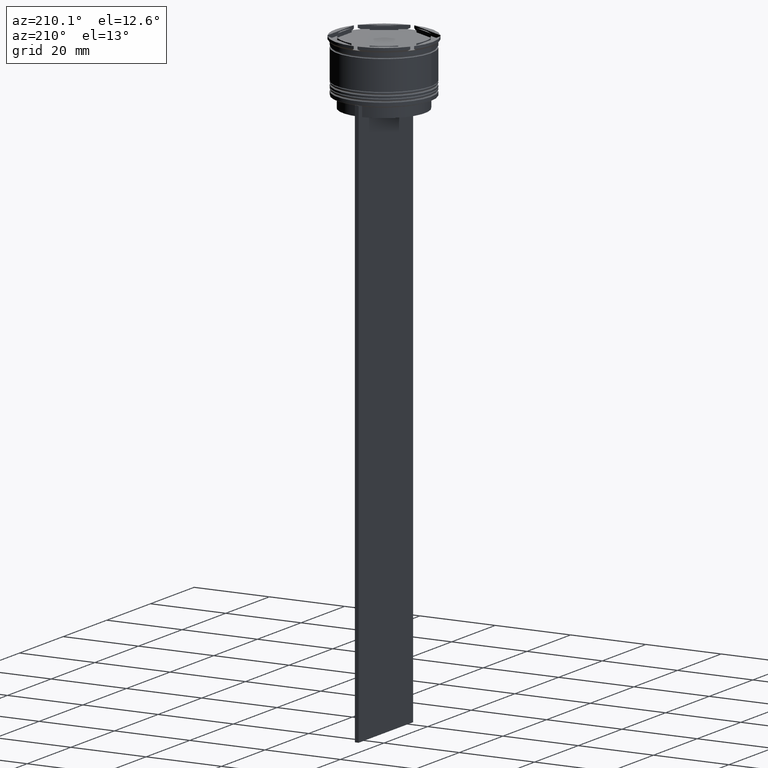
[diagram: clean part render]
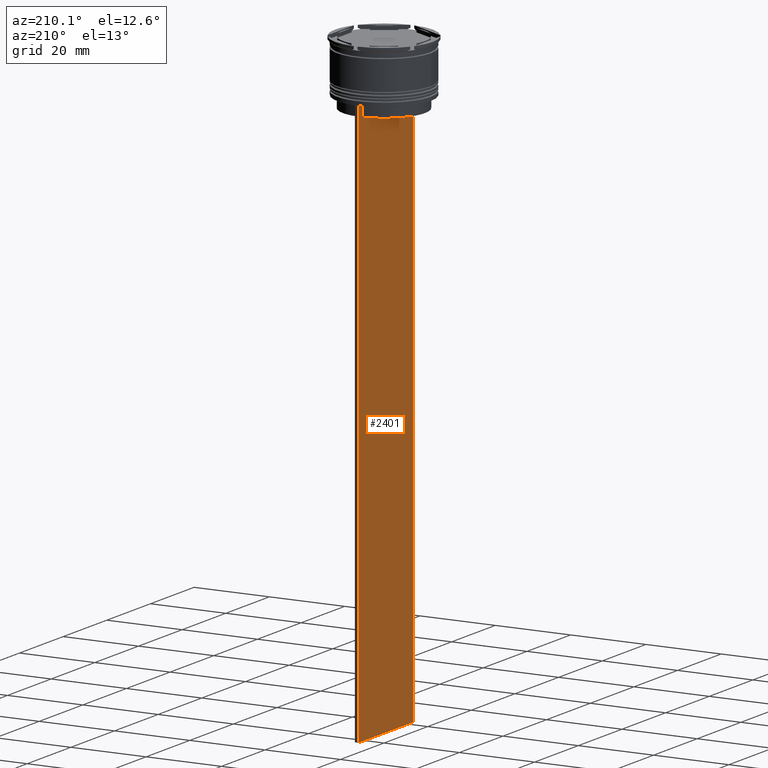
[diagram: same view with one face highlighted and labeled with its STEP entity id]
A machine part, auxiliary view. The second image highlights one B-rep face of the part: STEP entity #2401.
In plain terms, the highlighted planar face has unit normal (-1, 0, 0).
Its self-contained STEP definition (entity closure, byte-faithful):
#23 = CARTESIAN_POINT ( 'NONE',  ( -0.5000000000000000000, -10.88852607105296322, -14.50000000000000000 ) ) ;
#24 = CARTESIAN_POINT ( 'NONE',  ( -0.5000000000000000000, 12.50000000000000711, 11.01999200639360765 ) ) ;
#32 = CARTESIAN_POINT ( 'NONE',  ( -0.5000000000000000000, -11.38902980942626719, -14.00000000000000178 ) ) ;
#83 = DIRECTION ( 'NONE',  ( -1.000000000000000000, 0.000000000000000000, 0.000000000000000000 ) ) ;
#93 = EDGE_CURVE ( 'NONE', #1839, #467, #884, .T. ) ;
#104 = LINE ( 'NONE', #992, #2749 ) ;
#108 = ORIENTED_EDGE ( 'NONE', *, *, #2715, .F. ) ;
#189 = AXIS2_PLACEMENT_3D ( 'NONE', #2098, #83, #317 ) ;
#199 = LINE ( 'NONE', #24, #691 ) ;
#237 = DIRECTION ( 'NONE',  ( 0.000000000000000000, -1.000000000000000000, 0.000000000000000000 ) ) ;
#256 = CARTESIAN_POINT ( 'NONE',  ( -0.5000000000000000000, 12.50000000000000711, -163.9999999999999716 ) ) ;
#270 = LINE ( 'NONE', #716, #1395 ) ;
#271 = ORIENTED_EDGE ( 'NONE', *, *, #405, .F. ) ;
#300 = CARTESIAN_POINT ( 'NONE',  ( -0.5000000000000000000, -12.49999999999999289, -14.00000000000000178 ) ) ;
#304 = PLANE ( 'NONE',  #189 ) ;
#317 = DIRECTION ( 'NONE',  ( 0.000000000000000000, 0.000000000000000000, 1.000000000000000000 ) ) ;
#331 = VERTEX_POINT ( 'NONE', #2368 ) ;
#336 = EDGE_CURVE ( 'NONE', #2241, #1744, #1249, .T. ) ;
#405 = EDGE_CURVE ( 'NONE', #1974, #503, #2190, .T. ) ;
#418 = CARTESIAN_POINT ( 'NONE',  ( -0.5000000000000000000, -12.49999999999999289, -163.9999999999999716 ) ) ;
#461 = CARTESIAN_POINT ( 'NONE',  ( -0.5000000000000000000, -10.88852607105296322, 0.000000000000000000 ) ) ;
#467 = VERTEX_POINT ( 'NONE', #23 ) ;
#503 = VERTEX_POINT ( 'NONE', #1314 ) ;
#554 = CARTESIAN_POINT ( 'NONE',  ( -0.5000000000000000000, 10.88852607105296322, 0.000000000000000000 ) ) ;
#564 = B_SPLINE_CURVE_WITH_KNOTS ( 'NONE', 3,
 ( #2397, #1266, #1498, #1061 ),
 .UNSPECIFIED., .F., .F.,
 ( 4, 4 ),
 ( 0.01935560801904634073, 0.02006307108468586772 ),
 .UNSPECIFIED. ) ;
#583 = VERTEX_POINT ( 'NONE', #1831 ) ;
#592 = CARTESIAN_POINT ( 'NONE',  ( -0.5000000000000000000, -12.49999999999999289, 11.01999200639360765 ) ) ;
#651 = CARTESIAN_POINT ( 'NONE',  ( -0.5000000000000000000, 10.88852607105296144, -17.00000000000000000 ) ) ;
#691 = VECTOR ( 'NONE', #894, 1000.000000000000000 ) ;
#701 = CARTESIAN_POINT ( 'NONE',  ( -0.5000000000000000000, -12.49999999999999289, -14.00000000000000178 ) ) ;
#704 = LINE ( 'NONE', #300, #2564 ) ;
#716 = CARTESIAN_POINT ( 'NONE',  ( -0.5000000000000000000, -12.49999999999999289, -14.00000000000000178 ) ) ;
#742 = CARTESIAN_POINT ( 'NONE',  ( -0.5000000000000000000, -10.88852607105296144, -17.00000000000000000 ) ) ;
#796 = CARTESIAN_POINT ( 'NONE',  ( -0.5000000000000000000, 12.50000000000000711, -14.00000000000000178 ) ) ;
#851 = CARTESIAN_POINT ( 'NONE',  ( -0.5000000000000000000, 10.88852607105296322, -14.50000000000000000 ) ) ;
#879 = ORIENTED_EDGE ( 'NONE', *, *, #2156, .F. ) ;
#884 = LINE ( 'NONE', #461, #1667 ) ;
#889 = LINE ( 'NONE', #701, #1257 ) ;
#894 = DIRECTION ( 'NONE',  ( 0.000000000000000000, 0.000000000000000000, -1.000000000000000000 ) ) ;
#928 = CARTESIAN_POINT ( 'NONE',  ( -0.5000000000000000000, -12.49999999999999289, -14.00000000000000178 ) ) ;
#991 = VERTEX_POINT ( 'NONE', #256 ) ;
#992 = CARTESIAN_POINT ( 'NONE',  ( -0.5000000000000000000, 10.90000000000000213, -17.00000000000000000 ) ) ;
#996 = EDGE_CURVE ( 'NONE', #1853, #1516, #1631, .T. ) ;
#1061 = CARTESIAN_POINT ( 'NONE',  ( -0.5000000000000000000, 10.88852607105296322, -14.50000000000000000 ) ) ;
#1079 = EDGE_CURVE ( 'NONE', #2427, #331, #704, .T. ) ;
#1122 = DIRECTION ( 'NONE',  ( 0.000000000000000000, -1.000000000000000000, 0.000000000000000000 ) ) ;
#1149 = ORIENTED_EDGE ( 'NONE', *, *, #1554, .F. ) ;
#1161 = ORIENTED_EDGE ( 'NONE', *, *, #2092, .F. ) ;
#1249 = LINE ( 'NONE', #554, #2557 ) ;
#1257 = VECTOR ( 'NONE', #237, 1000.000000000000000 ) ;
#1266 = CARTESIAN_POINT ( 'NONE',  ( -0.5000000000000000000, 11.22219891375843304, -14.16667035472756808 ) ) ;
#1314 = CARTESIAN_POINT ( 'NONE',  ( -0.5000000000000000000, -12.49999999999999289, -163.9999999999999716 ) ) ;
#1321 = CARTESIAN_POINT ( 'NONE',  ( -0.5000000000000000000, -11.05536450423839234, -14.33333718996393102 ) ) ;
#1385 = DIRECTION ( 'NONE',  ( 0.000000000000000000, -1.000000000000000000, 0.000000000000000000 ) ) ;
#1395 = VECTOR ( 'NONE', #1607, 1000.000000000000000 ) ;
#1439 = ORIENTED_EDGE ( 'NONE', *, *, #1079, .F. ) ;
#1475 = VECTOR ( 'NONE', #1481, 1000.000000000000000 ) ;
#1481 = DIRECTION ( 'NONE',  ( 0.000000000000000000, 0.000000000000000000, -1.000000000000000000 ) ) ;
#1498 = CARTESIAN_POINT ( 'NONE',  ( -0.5000000000000000000, 11.05536450345590538, -14.33333719074559376 ) ) ;
#1515 = ORIENTED_EDGE ( 'NONE', *, *, #2668, .F. ) ;
#1516 = VERTEX_POINT ( 'NONE', #2316 ) ;
#1554 = EDGE_CURVE ( 'NONE', #1744, #1839, #104, .T. ) ;
#1607 = DIRECTION ( 'NONE',  ( 0.000000000000000000, -1.000000000000000000, 0.000000000000000000 ) ) ;
#1631 = LINE ( 'NONE', #1648, #1861 ) ;
#1648 = CARTESIAN_POINT ( 'NONE',  ( -0.5000000000000000000, -12.49999999999999289, -14.00000000000000178 ) ) ;
#1667 = VECTOR ( 'NONE', #2024, 1000.000000000000000 ) ;
#1744 = VERTEX_POINT ( 'NONE', #651 ) ;
#1764 = ORIENTED_EDGE ( 'NONE', *, *, #2192, .T. ) ;
#1831 = CARTESIAN_POINT ( 'NONE',  ( -0.5000000000000000000, 11.38902980942626719, -14.00000000000000178 ) ) ;
#1839 = VERTEX_POINT ( 'NONE', #742 ) ;
#1853 = VERTEX_POINT ( 'NONE', #2538 ) ;
#1861 = VECTOR ( 'NONE', #1122, 1000.000000000000000 ) ;
#1869 = VECTOR ( 'NONE', #2445, 1000.000000000000000 ) ;
#1974 = VERTEX_POINT ( 'NONE', #928 ) ;
#2024 = DIRECTION ( 'NONE',  ( -0.000000000000000000, -0.000000000000000000, 1.000000000000000000 ) ) ;
#2033 = ORIENTED_EDGE ( 'NONE', *, *, #93, .F. ) ;
#2043 = CARTESIAN_POINT ( 'NONE',  ( -0.5000000000000000000, -11.22219891450652973, -14.16667035398018903 ) ) ;
#2092 = EDGE_CURVE ( 'NONE', #583, #2241, #564, .T. ) ;
#2098 = CARTESIAN_POINT ( 'NONE',  ( -0.5000000000000000000, -12.49999999999999289, 11.01999200639360765 ) ) ;
#2156 = EDGE_CURVE ( 'NONE', #503, #991, #2458, .T. ) ;
#2177 = DIRECTION ( 'NONE',  ( 0.000000000000000000, 0.000000000000000000, -1.000000000000000000 ) ) ;
#2190 = LINE ( 'NONE', #592, #1475 ) ;
#2192 = EDGE_CURVE ( 'NONE', #2427, #991, #199, .T. ) ;
#2241 = VERTEX_POINT ( 'NONE', #851 ) ;
#2254 = CARTESIAN_POINT ( 'NONE',  ( -0.5000000000000000000, -10.88852607105296322, -14.50000000000000000 ) ) ;
#2316 = CARTESIAN_POINT ( 'NONE',  ( -0.5000000000000000000, -12.38991525394746773, -14.00000000000000178 ) ) ;
#2324 = FACE_OUTER_BOUND ( 'NONE', #2632, .T. ) ;
#2368 = CARTESIAN_POINT ( 'NONE',  ( -0.5000000000000000000, 12.38991525394746773, -14.00000000000000178 ) ) ;
#2374 = ORIENTED_EDGE ( 'NONE', *, *, #336, .F. ) ;
#2397 = CARTESIAN_POINT ( 'NONE',  ( -0.5000000000000000000, 11.38902980942626719, -14.00000000000000178 ) ) ;
#2401 = ADVANCED_FACE ( 'NONE', ( #2324 ), #304, .T. ) ;
#2427 = VERTEX_POINT ( 'NONE', #796 ) ;
#2445 = DIRECTION ( 'NONE',  ( 0.000000000000000000, 1.000000000000000000, 0.000000000000000000 ) ) ;
#2458 = LINE ( 'NONE', #418, #1869 ) ;
#2500 = DIRECTION ( 'NONE',  ( 0.000000000000000000, -1.000000000000000000, 0.000000000000000000 ) ) ;
#2538 = CARTESIAN_POINT ( 'NONE',  ( -0.5000000000000000000, -11.38902980942626719, -14.00000000000000178 ) ) ;
#2557 = VECTOR ( 'NONE', #2177, 1000.000000000000000 ) ;
#2564 = VECTOR ( 'NONE', #2500, 1000.000000000000000 ) ;
#2632 = EDGE_LOOP ( 'NONE', ( #1161, #1515, #1439, #1764, #879, #271, #108, #2797, #2873, #2033, #1149, #2374 ) ) ;
#2668 = EDGE_CURVE ( 'NONE', #331, #583, #889, .T. ) ;
#2696 = EDGE_CURVE ( 'NONE', #467, #1853, #2735, .T. ) ;
#2715 = EDGE_CURVE ( 'NONE', #1516, #1974, #270, .T. ) ;
#2735 = B_SPLINE_CURVE_WITH_KNOTS ( 'NONE', 3,
 ( #2254, #1321, #2043, #32 ),
 .UNSPECIFIED., .F., .F.,
 ( 4, 4 ),
 ( 0.05041323384703226551, 0.05112713601261605068 ),
 .UNSPECIFIED. ) ;
#2749 = VECTOR ( 'NONE', #1385, 1000.000000000000000 ) ;
#2797 = ORIENTED_EDGE ( 'NONE', *, *, #996, .F. ) ;
#2873 = ORIENTED_EDGE ( 'NONE', *, *, #2696, .F. ) ;